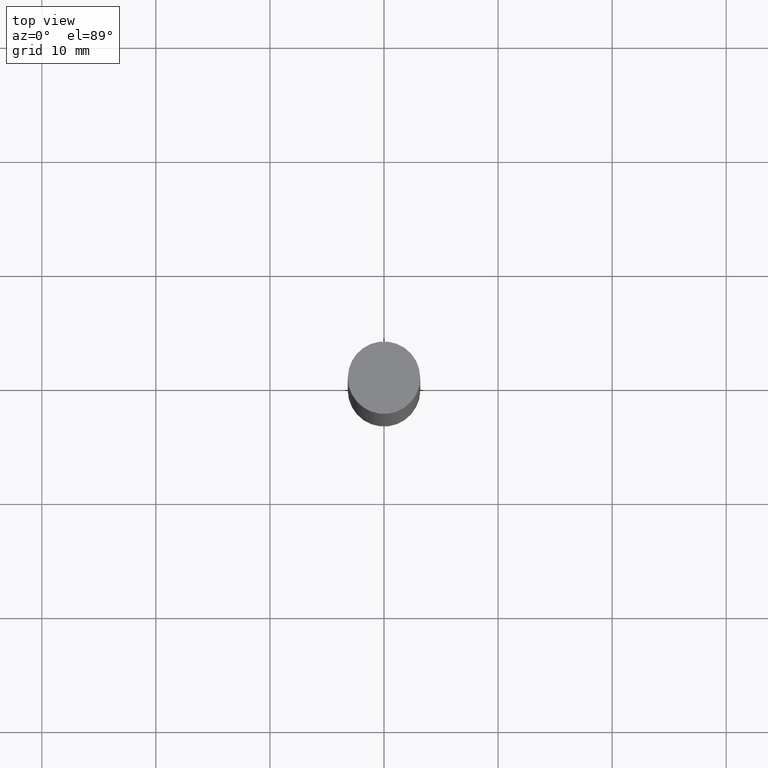
[diagram: clean part render]
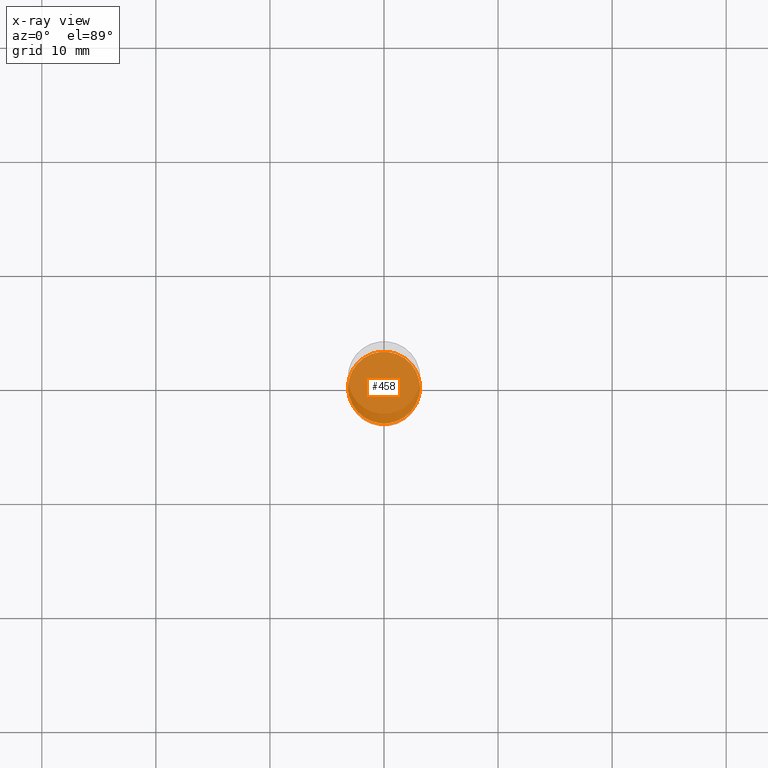
[diagram: x-ray — body ghosted, one internal face saturated and labeled with its STEP entity id]
A machine part, top view, then the same camera in x-ray: the body is ghosted and one INTERNAL B-rep face — a face not visible from any outside direction — is saturated and labeled: STEP entity #458.
In plain terms, the highlighted planar face has unit normal (-0, 0, 1).
Its self-contained STEP definition (entity closure, byte-faithful):
#11 = VERTEX_POINT ( 'NONE', #490 ) ;
#44 = ORIENTED_EDGE ( 'NONE', *, *, #160, .F. ) ;
#52 = CARTESIAN_POINT ( 'NONE',  ( 4.890937612370272633E-29, -6.982962677686290376E-15, -1.999999999999999778 ) ) ;
#54 = CARTESIAN_POINT ( 'NONE',  ( 4.890937612370273194E-29, -6.982962677686291165E-15, -2.000000000000000000 ) ) ;
#90 = AXIS2_PLACEMENT_3D ( 'NONE', #52, #106, #621 ) ;
#106 = DIRECTION ( 'NONE',  ( -2.445468806185136597E-29, 3.491481338843145583E-15, 1.000000000000000000 ) ) ;
#140 = DIRECTION ( 'NONE',  ( 1.000000000000000000, -6.982962677686265922E-15, 4.876176775795935793E-29 ) ) ;
#160 = EDGE_CURVE ( 'NONE', #581, #11, #281, .T. ) ;
#170 = CARTESIAN_POINT ( 'NONE',  ( 0.1239999999999999991, -7.848850049719387701E-15, -1.999999999999999778 ) ) ;
#221 = CARTESIAN_POINT ( 'NONE',  ( 4.890937612370272633E-29, -6.982962677686290376E-15, -1.999999999999999778 ) ) ;
#244 = DIRECTION ( 'NONE',  ( -2.438088387897960049E-29, 3.491481338843145188E-15, 1.000000000000000000 ) ) ;
#260 = CIRCLE ( 'NONE', #539, 0.1239999999999999991 ) ;
#281 = CIRCLE ( 'NONE', #90, 0.1239999999999999991 ) ;
#341 = EDGE_CURVE ( 'NONE', #11, #581, #260, .T. ) ;
#427 = DIRECTION ( 'NONE',  ( -2.445468806185136597E-29, 3.491481338843145583E-15, 1.000000000000000000 ) ) ;
#429 = ORIENTED_EDGE ( 'NONE', *, *, #341, .F. ) ;
#458 = ADVANCED_FACE ( 'NONE', ( #674 ), #503, .F. ) ;
#490 = CARTESIAN_POINT ( 'NONE',  ( -0.1239999999999999991, -6.096591230995543750E-15, -1.999999999999999778 ) ) ;
#503 = PLANE ( 'NONE',  #673 ) ;
#539 = AXIS2_PLACEMENT_3D ( 'NONE', #221, #427, #652 ) ;
#581 = VERTEX_POINT ( 'NONE', #170 ) ;
#621 = DIRECTION ( 'NONE',  ( 1.000000000000000000, -6.982962677686270655E-15, 0.000000000000000000 ) ) ;
#652 = DIRECTION ( 'NONE',  ( 1.000000000000000000, -6.982962677686270655E-15, 0.000000000000000000 ) ) ;
#656 = EDGE_LOOP ( 'NONE', ( #44, #429 ) ) ;
#673 = AXIS2_PLACEMENT_3D ( 'NONE', #54, #244, #140 ) ;
#674 = FACE_OUTER_BOUND ( 'NONE', #656, .T. ) ;